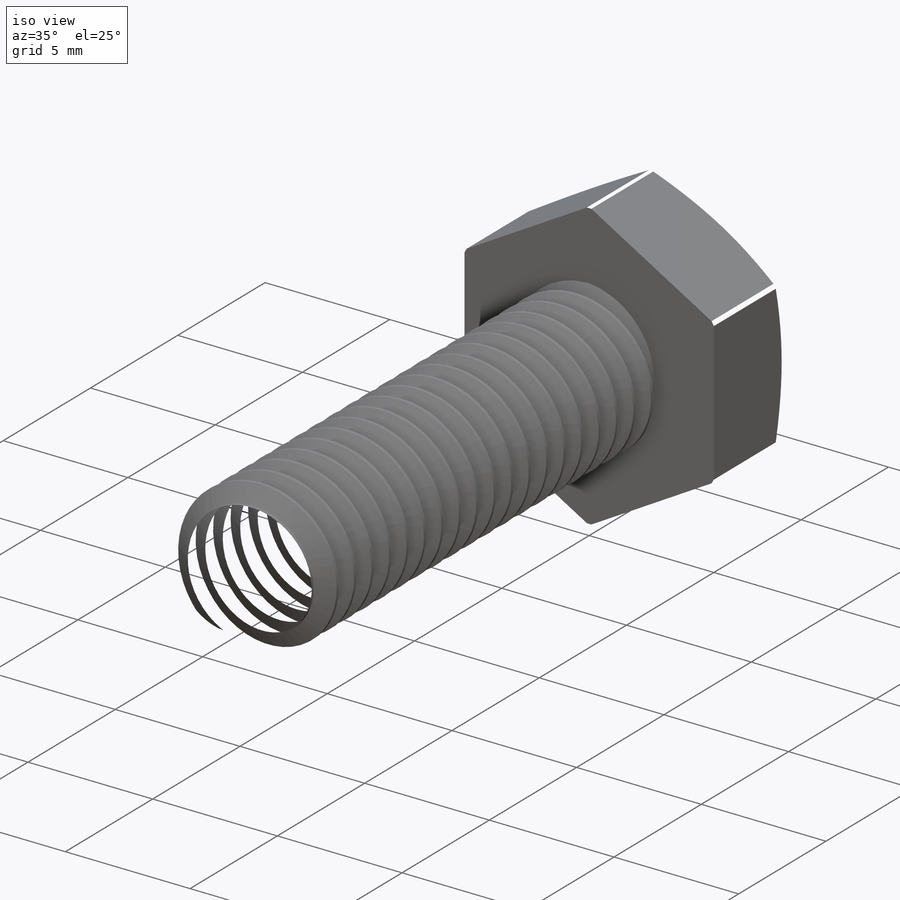
[diagram: iso view]
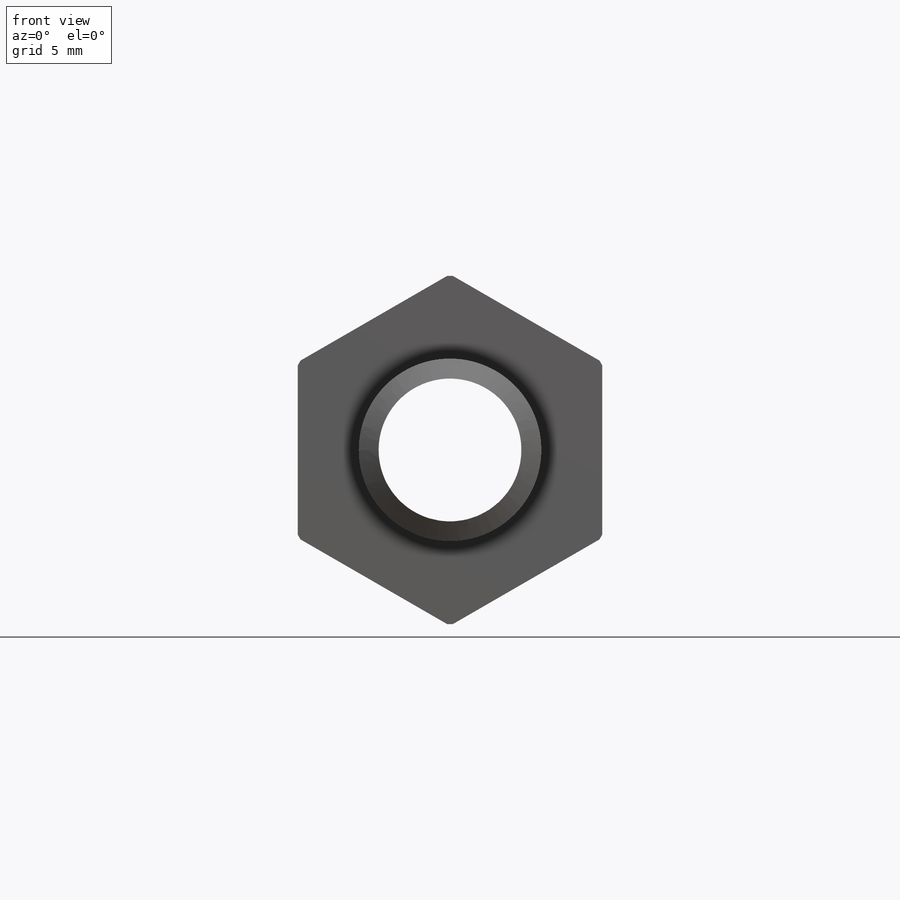
[diagram: front view]
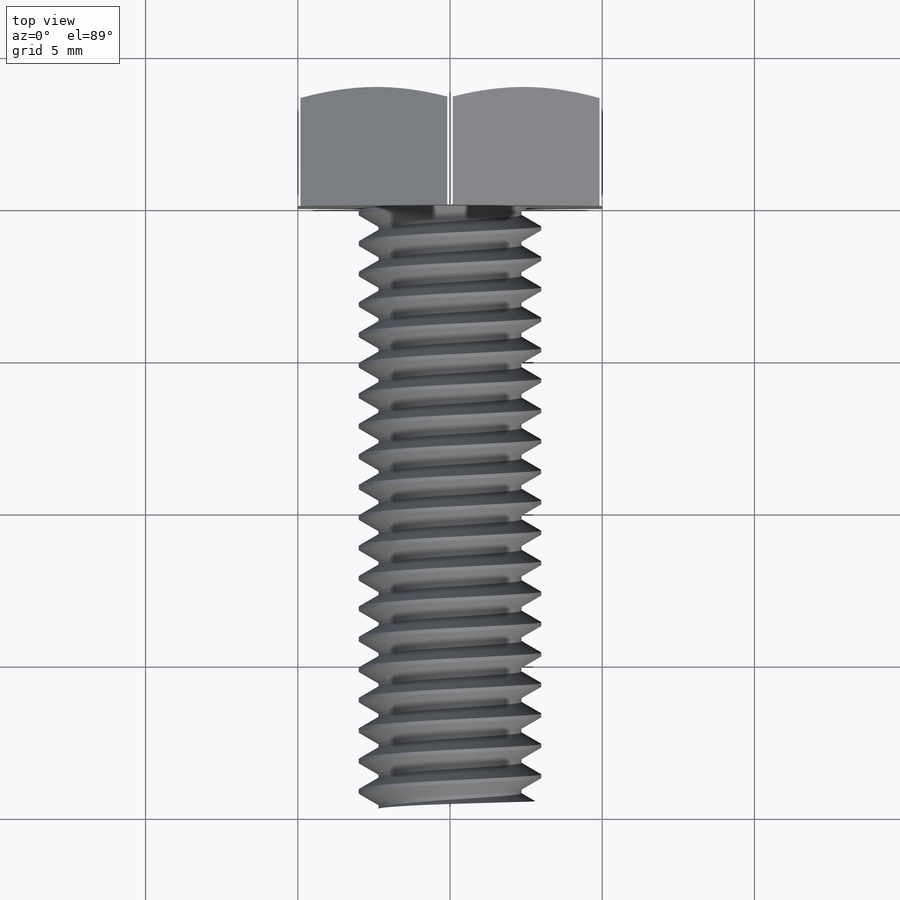
[diagram: top view]
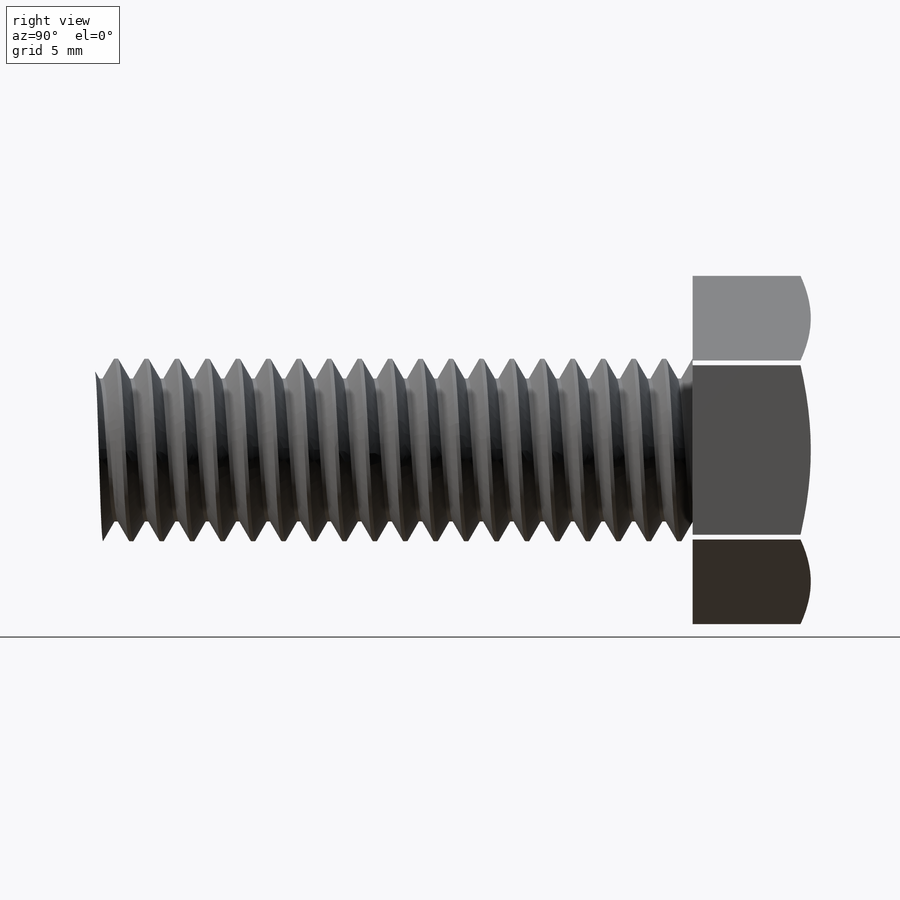
[diagram: right view]
SOLIDWORKS PART (.sldprt)
format: sldprt  version: not decoded by parser v0  size: 963,584 bytes
history: native  units: mm
features: sketch x8, extrude x2, cut_revolve x2, material x1, helix x1, sweep x1, revolve x1 (+14 scaffold rows collapsed)
feature tree (30):
  scaffold x14  (default folders/planes/origin — collapsed)
  material  "AISI 304"
  sketch  "Sketch1"  dims[OD=6.0mm]
  extrude  "Extrude1"  Depth=20mm screw length=20mm
  sketch  "Sketch2"
  helix  "Helix/Spiral1"  Pitch=21mm pitch=1mm
  sketch  "Sketch3"  dims[c1.D1=0.125mm c1.D2=0.5mm c1.D3=~1.069256mm c2.D3=60.0deg]
  sweep  "Cut-Sweep1"
  sketch  "Sketch4"  dims[c1.D1=~3.187432mm c2.D1=55.0deg c2.D2=0.254mm]
  cut_revolve  "Cut-Revolve1"  Angle=360deg
  sketch  "Sketch5"  dims[c1.Thread min=87.3125mm c1.D2=0.635mm c1.D3=0.3302mm c1.D1=0.3302mm c2.D2=0.127mm c2.D3=1.0541mm c3.D3=20.0deg]
  revolve  "partially thread"  Angle=360deg
  sketch  "Sketch6"  dims[head dia=10.0mm]
  extrude  "Extrude2"  Depth=4mm head depth=4mm
  sketch  "Sketch9"  dims[D1=5.5mm]
  sketch  "Sketch10"  dims[c1.D1=~0.53419mm c2.D1=25.0deg c2.D2=9.5mm c2.D3=~0.051175mm]
  cut_revolve  "Cut-Revolve2"  Angle=360deg
decode coverage: 13 of 15 modeling features carry decoded parameters
note: ~ marks probable driven/reference dimensions
note: suppression state not decoded; provenance and decode notes live in map.json
